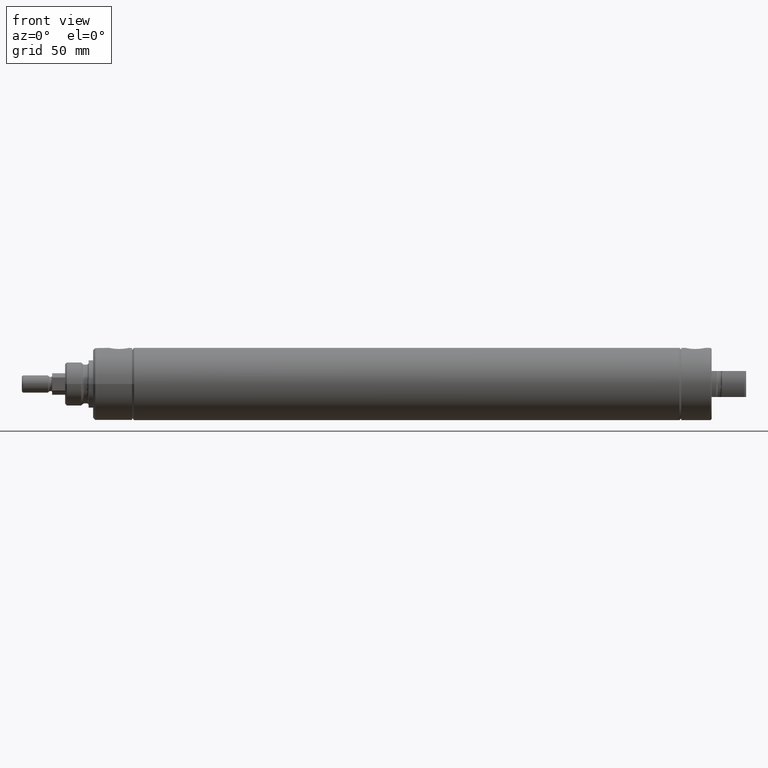
[diagram: clean part render]
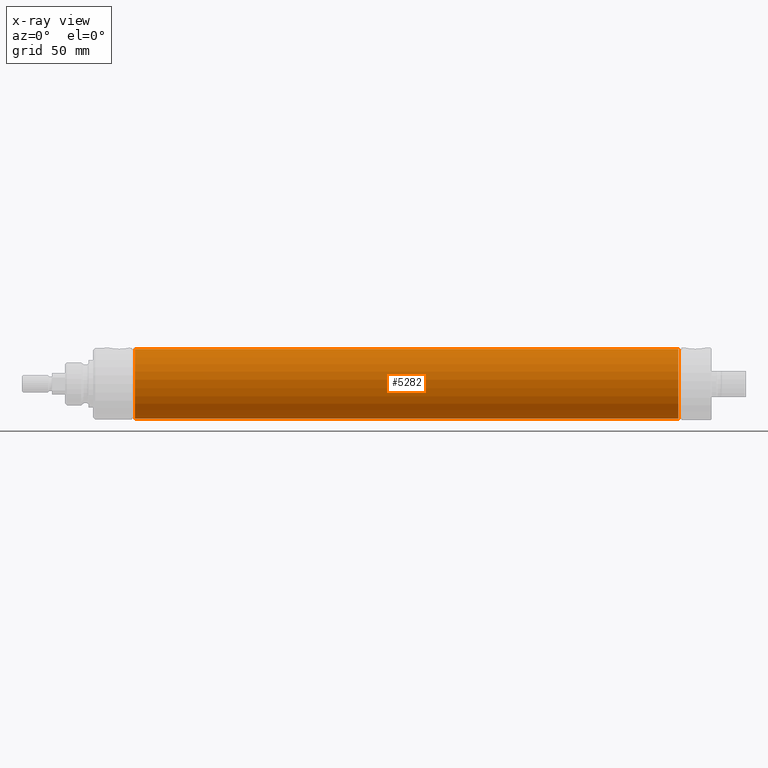
[diagram: x-ray — body ghosted, one internal face saturated and labeled with its STEP entity id]
A machine part, front view, then the same camera in x-ray: the body is ghosted and one INTERNAL B-rep face — a face not visible from any outside direction — is saturated and labeled: STEP entity #5282.
In plain terms, the highlighted cylindrical surface (edge-blend (fillet) strip) has radius 25.5778 mm, axis along (-1, 0, 0).
Its self-contained STEP definition (entity closure, byte-faithful):
#26 = DIRECTION ( 'NONE',  ( 1.000000000000000000, 0.000000000000000000, 0.000000000000000000 ) ) ;
#81 = VERTEX_POINT ( 'NONE', #2949 ) ;
#166 = VERTEX_POINT ( 'NONE', #4664 ) ;
#240 = AXIS2_PLACEMENT_3D ( 'NONE', #1863, #3563, #2809 ) ;
#268 = CIRCLE ( 'NONE', #3378, 25.57779999999999987 ) ;
#312 = VERTEX_POINT ( 'NONE', #594 ) ;
#426 = FACE_OUTER_BOUND ( 'NONE', #1282, .T. ) ;
#568 = CARTESIAN_POINT ( 'NONE',  ( 2.120900000000006003, 0.000000000000000000, -25.57779999999999987 ) ) ;
#594 = CARTESIAN_POINT ( 'NONE',  ( 401.1295000000000073, 0.000000000000000000, 25.57779999999999632 ) ) ;
#1025 = VECTOR ( 'NONE', #3493, 1000.000000000000000 ) ;
#1233 = EDGE_CURVE ( 'NONE', #166, #312, #3715, .T. ) ;
#1239 = DIRECTION ( 'NONE',  ( 0.000000000000000000, 0.000000000000000000, -1.000000000000000000 ) ) ;
#1282 = EDGE_LOOP ( 'NONE', ( #3707, #3614, #4214, #1541 ) ) ;
#1541 = ORIENTED_EDGE ( 'NONE', *, *, #1233, .T. ) ;
#1843 = LINE ( 'NONE', #2205, #3428 ) ;
#1863 = CARTESIAN_POINT ( 'NONE',  ( 401.1295000000000073, 0.000000000000000000, 0.000000000000000000 ) ) ;
#2205 = CARTESIAN_POINT ( 'NONE',  ( 2.120900000000006003, 3.132377089923117183E-15, 25.57779999999999987 ) ) ;
#2556 = AXIS2_PLACEMENT_3D ( 'NONE', #2649, #3902, #3823 ) ;
#2649 = CARTESIAN_POINT ( 'NONE',  ( 806.5008000000000266, 0.000000000000000000, 0.000000000000000000 ) ) ;
#2710 = LINE ( 'NONE', #568, #1025 ) ;
#2809 = DIRECTION ( 'NONE',  ( 0.000000000000000000, 0.000000000000000000, -1.000000000000000000 ) ) ;
#2826 = EDGE_CURVE ( 'NONE', #81, #166, #2710, .T. ) ;
#2828 = CARTESIAN_POINT ( 'NONE',  ( 2.120899999999989571, 3.132377089923117972E-15, 25.57780000000000697 ) ) ;
#2885 = EDGE_CURVE ( 'NONE', #3982, #312, #1843, .T. ) ;
#2949 = CARTESIAN_POINT ( 'NONE',  ( 2.120900000000000230, 0.000000000000000000, -25.57779999999999987 ) ) ;
#3223 = EDGE_CURVE ( 'NONE', #81, #3982, #268, .T. ) ;
#3378 = AXIS2_PLACEMENT_3D ( 'NONE', #3794, #4636, #1239 ) ;
#3428 = VECTOR ( 'NONE', #26, 1000.000000000000000 ) ;
#3493 = DIRECTION ( 'NONE',  ( 1.000000000000000000, 0.000000000000000000, 0.000000000000000000 ) ) ;
#3563 = DIRECTION ( 'NONE',  ( 1.000000000000000000, 0.000000000000000000, 0.000000000000000000 ) ) ;
#3614 = ORIENTED_EDGE ( 'NONE', *, *, #3223, .F. ) ;
#3707 = ORIENTED_EDGE ( 'NONE', *, *, #2885, .F. ) ;
#3715 = CIRCLE ( 'NONE', #240, 25.57779999999999987 ) ;
#3794 = CARTESIAN_POINT ( 'NONE',  ( 2.120900000000000230, 0.000000000000000000, 0.000000000000000000 ) ) ;
#3823 = DIRECTION ( 'NONE',  ( 0.000000000000000000, -1.000000000000000000, -1.615544574432586731E-15 ) ) ;
#3902 = DIRECTION ( 'NONE',  ( 1.000000000000000000, 0.000000000000000000, 0.000000000000000000 ) ) ;
#3982 = VERTEX_POINT ( 'NONE', #2828 ) ;
#4214 = ORIENTED_EDGE ( 'NONE', *, *, #2826, .T. ) ;
#4636 = DIRECTION ( 'NONE',  ( 1.000000000000000000, 0.000000000000000000, 0.000000000000000000 ) ) ;
#4664 = CARTESIAN_POINT ( 'NONE',  ( 401.1295000000000073, 0.000000000000000000, -25.57779999999999987 ) ) ;
#5083 = CYLINDRICAL_SURFACE ( 'NONE', #2556, 25.57779999999999987 ) ;
#5282 = ADVANCED_FACE ( 'NONE', ( #426 ), #5083, .F. ) ;